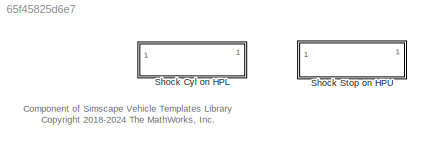
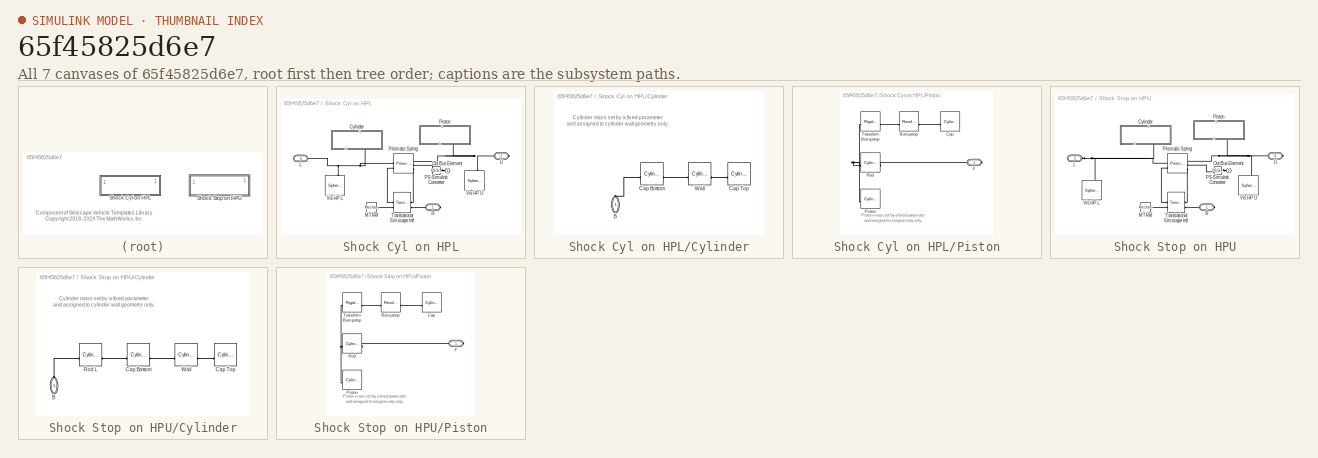
[diagram: thumbnail index - all 7 canvases of the model, root first then tree order]
MODEL slx_65f45825d6e7
KIND library
CONFIG AbsTol = auto
CONFIG EnableMultiTasking = off
CONFIG FixedStep = auto
CONFIG MaxStep = auto
CONFIG MinStep = auto
CONFIG RelTol = 1e-3
CONFIG SampleTimeConstraint = Unconstrained
CONFIG SolverName = VariableStepAuto
CONFIG StartTime = 0.0
CONFIG StopTime = 10.0
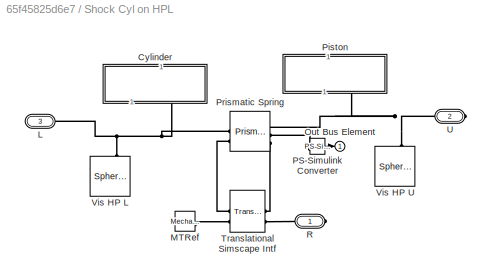
BLOCK [SubSystem] Shock Cyl on HPL
BLOCK [SubSystem] Shock Cyl on HPL/Cylinder
  NameLocation = left
BLOCK [PMIOPort] Shock Cyl on HPL/Cylinder/B
  NameLocation = right
  Side = Left
BLOCK [Reference] Shock Cyl on HPL/Cylinder/Cap Bottom  REF=sm_lib/Body Elements/Cylindrical Solid
  SourceBlock = sm_lib/Body Elements/Cylindrical Solid
  SourceType = Cylindrical Solid
BLOCK [Reference] Shock Cyl on HPL/Cylinder/Cap Top  REF=sm_lib/Body Elements/Cylindrical Solid
  SourceBlock = sm_lib/Body Elements/Cylindrical Solid
  SourceType = Cylindrical Solid
BLOCK [Reference] Shock Cyl on HPL/Cylinder/Wall  REF=sm_lib/Body Elements/Cylindrical Solid
  SourceBlock = sm_lib/Body Elements/Cylindrical Solid
  SourceType = Cylindrical Solid
BLOCK [PMIOPort] Shock Cyl on HPL/L
  Port = 3
  Side = Left
BLOCK [Reference] Shock Cyl on HPL/MTRef  REF=fl_lib/Mechanical/Translational
Elements/Mechanical
Translational
Reference
  SourceBlock = fl_lib/Mechanical/Translational\nElements/Mechanical\nTranslational\nReference
  SourceType = Mechanical\nTranslational\nReference
BLOCK [Outport] Shock Cyl on HPL/Out Bus Element
  VectorParamsAs1DForOutWhenUnconnected = off
BLOCK [Reference] Shock Cyl on HPL/PS-Simulink Converter  REF=nesl_utility/PS-Simulink
Converter
  NameLocation = top
  SourceBlock = nesl_utility/PS-Simulink\nConverter
  SourceType = PS-Simulink\nConverter
BLOCK [SubSystem] Shock Cyl on HPL/Piston
  NameLocation = right
BLOCK [Reference] Shock Cyl on HPL/Piston/Bumpstop  REF=sm_lib/Body Elements/Revolved Solid
  SourceBlock = sm_lib/Body Elements/Revolved Solid
  SourceType = Revolved Solid
BLOCK [Reference] Shock Cyl on HPL/Piston/Cap  REF=sm_lib/Body Elements/Cylindrical Solid
  SourceBlock = sm_lib/Body Elements/Cylindrical Solid
  SourceType = Cylindrical Solid
BLOCK [PMIOPort] Shock Cyl on HPL/Piston/F
  Side = Right
BLOCK [Reference] Shock Cyl on HPL/Piston/Piston  REF=sm_lib/Body Elements/Cylindrical Solid
  SourceBlock = sm_lib/Body Elements/Cylindrical Solid
  SourceType = Cylindrical Solid
BLOCK [Reference] Shock Cyl on HPL/Piston/Rod  REF=sm_lib/Body Elements/Cylindrical Solid
  SourceBlock = sm_lib/Body Elements/Cylindrical Solid
  SourceType = Cylindrical Solid
BLOCK [Reference] Shock Cyl on HPL/Piston/Transform Bumpstop  REF=sm_lib/Frames and
Transforms/Rigid
Transform
  SourceBlock = sm_lib/Frames and\nTransforms/Rigid\nTransform
  SourceType = Rigid\nTransform
BLOCK [Reference] Shock Cyl on HPL/Prismatic Spring  REF=sm_lib/Joints/Prismatic
Joint
  SourceBlock = sm_lib/Joints/Prismatic\nJoint
  SourceType = Prismatic\nJoint
BLOCK [PMIOPort] Shock Cyl on HPL/R
  Side = Right
BLOCK [Reference] Shock Cyl on HPL/Translational Simscape Intf  REF=Suspension_Utilities/Translational
Simscape Intf
  SourceBlock = Suspension_Utilities/Translational\nSimscape Intf
  SourceProductName = SmCar - Suspension Utilites
  SourceType = SubSystem
BLOCK [PMIOPort] Shock Cyl on HPL/U
  Port = 2
  Side = Right
BLOCK [Reference] Shock Cyl on HPL/Vis HP L  REF=sm_lib/Body Elements/Spherical Solid
  NameLocation = left
  SourceBlock = sm_lib/Body Elements/Spherical Solid
  SourceType = Spherical Solid
BLOCK [Reference] Shock Cyl on HPL/Vis HP U  REF=sm_lib/Body Elements/Spherical Solid
  NameLocation = right
  SourceBlock = sm_lib/Body Elements/Spherical Solid
  SourceType = Spherical Solid
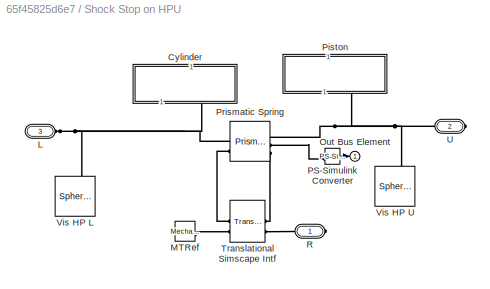
BLOCK [SubSystem] Shock Stop on HPU
BLOCK [SubSystem] Shock Stop on HPU/Cylinder
  NameLocation = left
BLOCK [PMIOPort] Shock Stop on HPU/Cylinder/B
  NameLocation = right
  Side = Left
BLOCK [Reference] Shock Stop on HPU/Cylinder/Cap Bottom  REF=sm_lib/Body Elements/Cylindrical Solid
  SourceBlock = sm_lib/Body Elements/Cylindrical Solid
  SourceType = Cylindrical Solid
BLOCK [Reference] Shock Stop on HPU/Cylinder/Cap Top  REF=sm_lib/Body Elements/Cylindrical Solid
  SourceBlock = sm_lib/Body Elements/Cylindrical Solid
  SourceType = Cylindrical Solid
BLOCK [Reference] Shock Stop on HPU/Cylinder/Rod L  REF=sm_lib/Body Elements/Cylindrical Solid
  SourceBlock = sm_lib/Body Elements/Cylindrical Solid
  SourceType = Cylindrical Solid
BLOCK [Reference] Shock Stop on HPU/Cylinder/Wall  REF=sm_lib/Body Elements/Cylindrical Solid
  SourceBlock = sm_lib/Body Elements/Cylindrical Solid
  SourceType = Cylindrical Solid
BLOCK [PMIOPort] Shock Stop on HPU/L
  Port = 3
  Side = Left
BLOCK [Reference] Shock Stop on HPU/MTRef  REF=fl_lib/Mechanical/Translational
Elements/Mechanical
Translational
Reference
  SourceBlock = fl_lib/Mechanical/Translational\nElements/Mechanical\nTranslational\nReference
  SourceType = Mechanical\nTranslational\nReference
BLOCK [Outport] Shock Stop on HPU/Out Bus Element
  VectorParamsAs1DForOutWhenUnconnected = off
BLOCK [Reference] Shock Stop on HPU/PS-Simulink Converter  REF=nesl_utility/PS-Simulink
Converter
  NameLocation = top
  SourceBlock = nesl_utility/PS-Simulink\nConverter
  SourceType = PS-Simulink\nConverter
BLOCK [SubSystem] Shock Stop on HPU/Piston
  NameLocation = right
BLOCK [Reference] Shock Stop on HPU/Piston/Bumpstop  REF=sm_lib/Body Elements/Revolved Solid
  SourceBlock = sm_lib/Body Elements/Revolved Solid
  SourceType = Revolved Solid
BLOCK [Reference] Shock Stop on HPU/Piston/Cap  REF=sm_lib/Body Elements/Cylindrical Solid
  SourceBlock = sm_lib/Body Elements/Cylindrical Solid
  SourceType = Cylindrical Solid
BLOCK [PMIOPort] Shock Stop on HPU/Piston/F
  Side = Right
BLOCK [Reference] Shock Stop on HPU/Piston/Piston  REF=sm_lib/Body Elements/Cylindrical Solid
  SourceBlock = sm_lib/Body Elements/Cylindrical Solid
  SourceType = Cylindrical Solid
BLOCK [Reference] Shock Stop on HPU/Piston/Rod  REF=sm_lib/Body Elements/Cylindrical Solid
  SourceBlock = sm_lib/Body Elements/Cylindrical Solid
  SourceType = Cylindrical Solid
BLOCK [Reference] Shock Stop on HPU/Piston/Transform Bumpstop  REF=sm_lib/Frames and
Transforms/Rigid
Transform
  SourceBlock = sm_lib/Frames and\nTransforms/Rigid\nTransform
  SourceType = Rigid\nTransform
BLOCK [Reference] Shock Stop on HPU/Prismatic Spring  REF=sm_lib/Joints/Prismatic
Joint
  SourceBlock = sm_lib/Joints/Prismatic\nJoint
  SourceType = Prismatic\nJoint
BLOCK [PMIOPort] Shock Stop on HPU/R
  Side = Right
BLOCK [Reference] Shock Stop on HPU/Translational Simscape Intf  REF=Suspension_Utilities/Translational
Simscape Intf
  SourceBlock = Suspension_Utilities/Translational\nSimscape Intf
  SourceProductName = SmCar - Suspension Utilites
  SourceType = SubSystem
BLOCK [PMIOPort] Shock Stop on HPU/U
  Port = 2
  Side = Right
BLOCK [Reference] Shock Stop on HPU/Vis HP L  REF=sm_lib/Body Elements/Spherical Solid
  NameLocation = left
  SourceBlock = sm_lib/Body Elements/Spherical Solid
  SourceType = Spherical Solid
BLOCK [Reference] Shock Stop on HPU/Vis HP U  REF=sm_lib/Body Elements/Spherical Solid
  NameLocation = right
  SourceBlock = sm_lib/Body Elements/Spherical Solid
  SourceType = Spherical Solid
ANNOTATION (root): Component of Simscape Vehicle Templates Library <copyright redacted>
ANNOTATION Shock Cyl on HPL/Cylinder: Cylinder mass set by a fixed parameter and assigned to cylinder wall geometry only.
ANNOTATION Shock Cyl on HPL/Piston: Piston mass set by a fixed parameter and assigned to rod geometry only.
ANNOTATION Shock Stop on HPU/Cylinder: Cylinder mass set by a fixed parameter and assigned to cylinder wall geometry only.
ANNOTATION Shock Stop on HPU/Piston: Piston mass set by a fixed parameter and assigned to rod geometry only.
LINE Shock Cyl on HPL/PS-Simulink Converter:1 -> Shock Cyl on HPL/Out Bus Element:1
LINE Shock Stop on HPU/PS-Simulink Converter:1 -> Shock Stop on HPU/Out Bus Element:1
PLINE Shock Cyl on HPL/Cylinder/B:RConn1 -- Shock Cyl on HPL/Cylinder/Cap Bottom:RConn1
PLINE Shock Cyl on HPL/Cylinder/Cap Bottom:LConn1 -- Shock Cyl on HPL/Cylinder/Wall:RConn1
PLINE Shock Cyl on HPL/Cylinder/Cap Top:LConn1 -- Shock Cyl on HPL/Cylinder/Wall:LConn1
PNET net1: Shock Cyl on HPL/Cylinder:LConn1 -- Shock Cyl on HPL/L:RConn1 -- Shock Cyl on HPL/Prismatic Spring:LConn1 -- Shock Cyl on HPL/Vis HP L:RConn1
PLINE Shock Cyl on HPL/MTRef:LConn1 -- Shock Cyl on HPL/Translational Simscape Intf:LConn2
PLINE Shock Cyl on HPL/PS-Simulink Converter:LConn1 -- Shock Cyl on HPL/Prismatic Spring:RConn2
PLINE Shock Cyl on HPL/Piston/Bumpstop:LConn1 -- Shock Cyl on HPL/Piston/Cap:LConn1
PLINE Shock Cyl on HPL/Piston/Bumpstop:RConn1 -- Shock Cyl on HPL/Piston/Transform Bumpstop:RConn1
PLINE Shock Cyl on HPL/Piston/F:RConn1 -- Shock Cyl on HPL/Piston/Rod:LConn1
PNET net2: Shock Cyl on HPL/Piston/Piston:LConn1 -- Shock Cyl on HPL/Piston/Rod:RConn1 -- Shock Cyl on HPL/Piston/Transform Bumpstop:LConn1
PNET net3: Shock Cyl on HPL/Piston:RConn1 -- Shock Cyl on HPL/Prismatic Spring:RConn1 -- Shock Cyl on HPL/U:RConn1 -- Shock Cyl on HPL/Vis HP U:RConn1
PLINE Shock Cyl on HPL/Prismatic Spring:LConn2 -- Shock Cyl on HPL/Translational Simscape Intf:LConn1
PLINE Shock Cyl on HPL/Prismatic Spring:RConn3 -- Shock Cyl on HPL/Translational Simscape Intf:RConn1
PLINE Shock Cyl on HPL/R:RConn1 -- Shock Cyl on HPL/Translational Simscape Intf:RConn2
PLINE Shock Stop on HPU/Cylinder/B:RConn1 -- Shock Stop on HPU/Cylinder/Rod L:RConn1
PLINE Shock Stop on HPU/Cylinder/Cap Bottom:LConn1 -- Shock Stop on HPU/Cylinder/Wall:RConn1
PLINE Shock Stop on HPU/Cylinder/Cap Bottom:RConn1 -- Shock Stop on HPU/Cylinder/Rod L:LConn1
PLINE Shock Stop on HPU/Cylinder/Cap Top:LConn1 -- Shock Stop on HPU/Cylinder/Wall:LConn1
PNET net4: Shock Stop on HPU/Cylinder:LConn1 -- Shock Stop on HPU/L:RConn1 -- Shock Stop on HPU/Prismatic Spring:LConn1 -- Shock Stop on HPU/Vis HP L:RConn1
PLINE Shock Stop on HPU/MTRef:LConn1 -- Shock Stop on HPU/Translational Simscape Intf:LConn2
PLINE Shock Stop on HPU/PS-Simulink Converter:LConn1 -- Shock Stop on HPU/Prismatic Spring:RConn2
PLINE Shock Stop on HPU/Piston/Bumpstop:LConn1 -- Shock Stop on HPU/Piston/Cap:LConn1
PLINE Shock Stop on HPU/Piston/Bumpstop:RConn1 -- Shock Stop on HPU/Piston/Transform Bumpstop:RConn1
PLINE Shock Stop on HPU/Piston/F:RConn1 -- Shock Stop on HPU/Piston/Rod:LConn1
PNET net5: Shock Stop on HPU/Piston/Piston:LConn1 -- Shock Stop on HPU/Piston/Rod:RConn1 -- Shock Stop on HPU/Piston/Transform Bumpstop:LConn1
PNET net6: Shock Stop on HPU/Piston:RConn1 -- Shock Stop on HPU/Prismatic Spring:RConn1 -- Shock Stop on HPU/U:RConn1 -- Shock Stop on HPU/Vis HP U:RConn1
PLINE Shock Stop on HPU/Prismatic Spring:LConn2 -- Shock Stop on HPU/Translational Simscape Intf:LConn1
PLINE Shock Stop on HPU/Prismatic Spring:RConn3 -- Shock Stop on HPU/Translational Simscape Intf:RConn1
PLINE Shock Stop on HPU/R:RConn1 -- Shock Stop on HPU/Translational Simscape Intf:RConn2
note: PNET lines group multi-terminal physical nets as a canonical sorted terminal list (undirected conserving connections); 2-terminal nets keep the pairwise PLINE form
